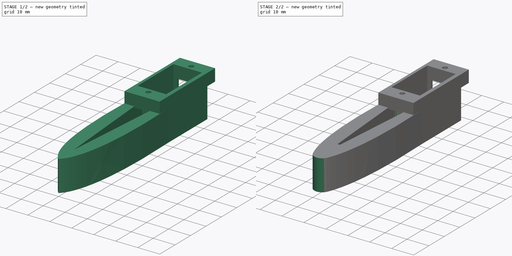
[diagram: build sequence overview — one tinted view per stage of 2, left to right]
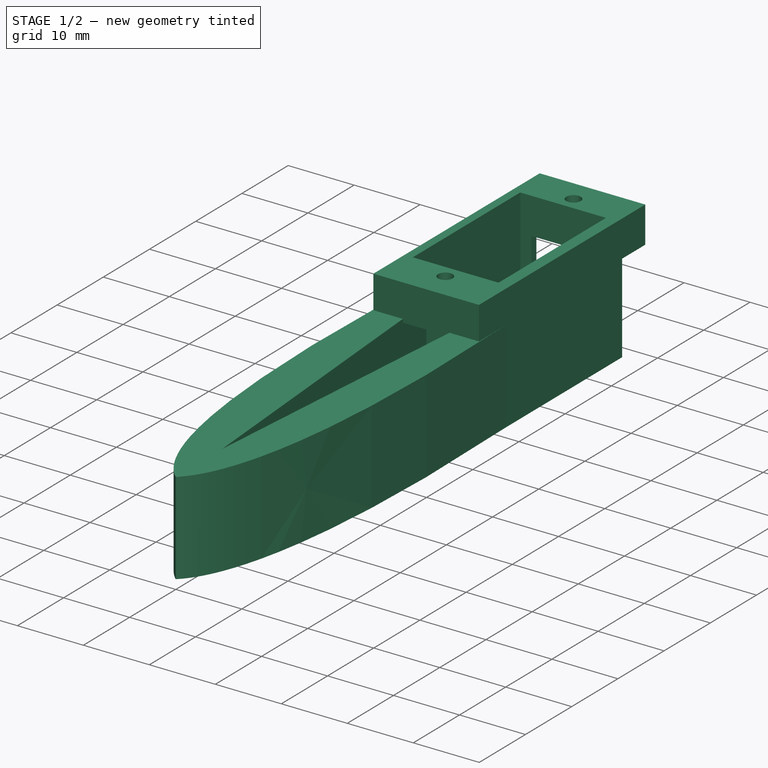
[diagram: stage 1 of 2 — iso view after this stage's code; geometry added in this stage tinted green]
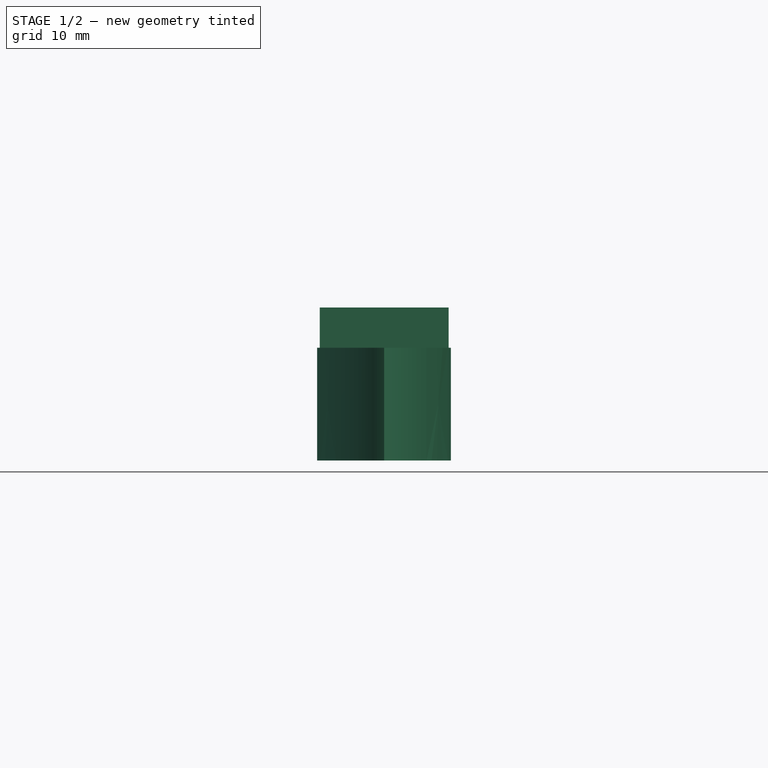
[diagram: stage 1 of 2 — front view after this stage's code; geometry added in this stage tinted green]
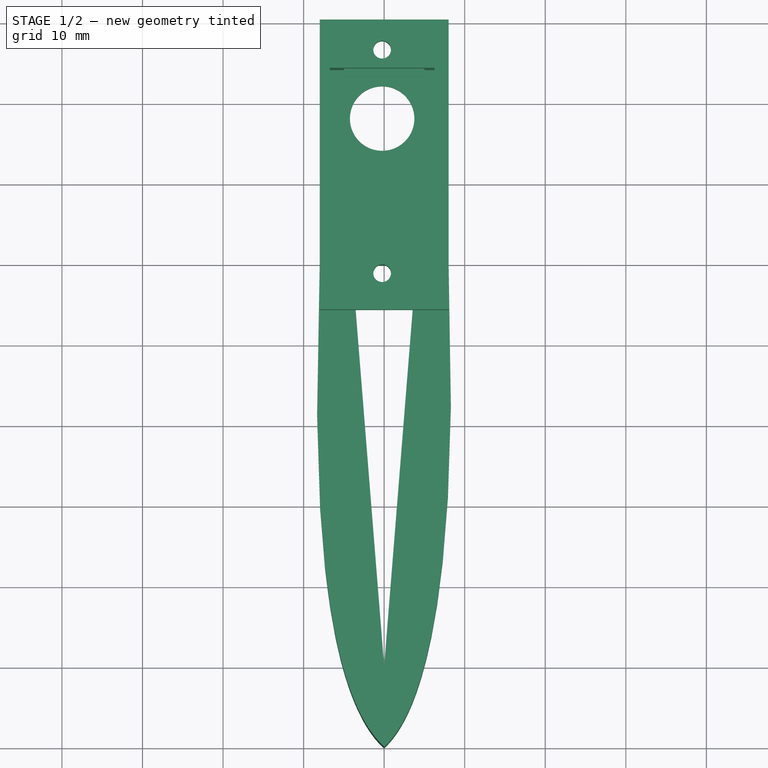
[diagram: stage 1 of 2 — top view after this stage's code; geometry added in this stage tinted green]
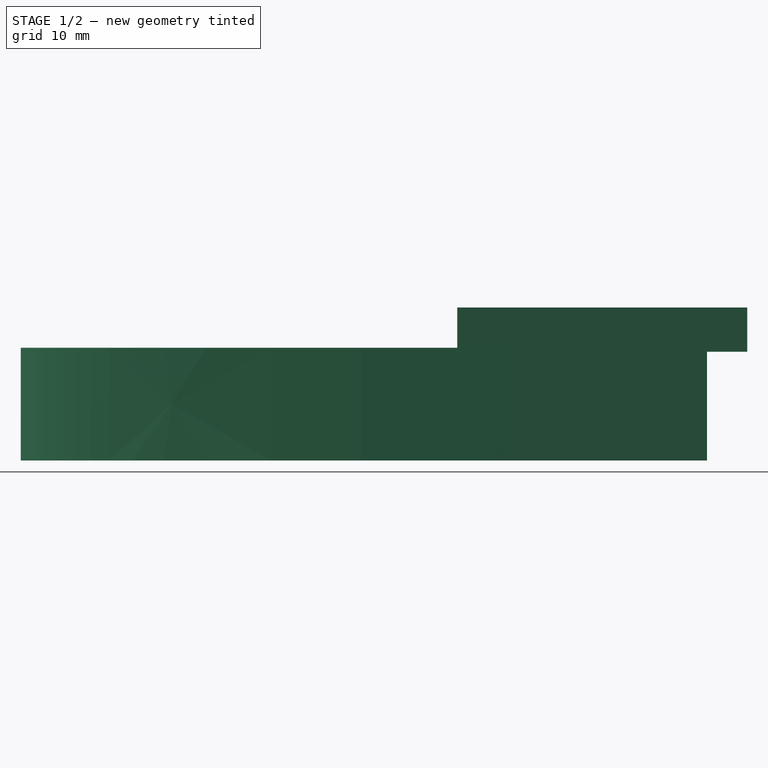
[diagram: stage 1 of 2 — right view after this stage's code; geometry added in this stage tinted green]
FCSTD DOCUMENT  (FreeCAD 0.18R4 (GitTag))
Label: pata 2
License: All rights reserved
LicenseURL: http://en.wikipedia.org/wiki/All_rights_reserved
objects: Sketcher::SketchObject×1, PartDesign::Pad×1, PartDesign::Body×1, Part::Feature×1, Part::MultiFuse×1, Part::Fillet×1
note: 7 computed .brp shape members not serialized (recipe doc carries the construction recipe); baked Part::Feature solids carry a one-line shape summary decoded from their .brp

FEATURE [Sketcher::SketchObject] Sketch
  MapMode = 5
  Support = -> [XY_Plane]
  sketch-geometry (16):
    g0: Circle [constr] CenterX=-8 CenterY=0 CenterZ=0 NormalX=0 NormalY=0 NormalZ=1 AngleXU=0 Radius=7
    g1: Circle [constr] CenterX=-10 CenterY=-51 CenterZ=0 NormalX=0 NormalY=0 NormalZ=1 AngleXU=0 Radius=7
    g2: Circle [constr] CenterX=0 CenterY=-60 CenterZ=0 NormalX=0 NormalY=0 NormalZ=1 AngleXU=0 Radius=7
    g3: BSplineCurve PolesCount=3 KnotsCount=2 Degree=2 IsPeriodic=0
    g4: GeomPoint [constr] X=-8 Y=0 Z=0
    g5: GeomPoint [constr] X=0 Y=-60 Z=0
    g6: Circle [constr] CenterX=8 CenterY=0 CenterZ=0 NormalX=0 NormalY=0 NormalZ=1 AngleXU=0 Radius=6
    g7: Circle [constr] CenterX=10 CenterY=-51 CenterZ=0 NormalX=0 NormalY=0 NormalZ=1 AngleXU=0 Radius=6
    g8: Circle [constr] CenterX=0 CenterY=-60 CenterZ=0 NormalX=0 NormalY=0 NormalZ=1 AngleXU=0 Radius=7
    g9: BSplineCurve PolesCount=3 KnotsCount=2 Degree=2 IsPeriodic=0
    g10: GeomPoint [constr] X=8 Y=0 Z=0
    g11: GeomPoint [constr] X=0 Y=-60 Z=0
    g12: LineSegment StartX=-8 StartY=0 StartZ=0 EndX=-4 EndY=0 EndZ=0
    g13: LineSegment StartX=-4 StartY=0 StartZ=0 EndX=0 EndY=-50 EndZ=0
    g14: LineSegment StartX=0 StartY=-50 StartZ=0 EndX=4 EndY=0 EndZ=0
    g15: LineSegment StartX=4 StartY=0 StartZ=0 EndX=8 EndY=0 EndZ=0
  constraints (36):
    c: Radius(g0) = 7
    c: Equal(g0,g1)
    c: Equal(g0,g2)
    c: InternalAlignment(g0,g3)
    c: InternalAlignment(g1,g3)
    c: InternalAlignment(g2,g3)
    c: InternalAlignment(g4,g3)
    c: InternalAlignment(g5,g3)
    c: Radius(g6) = 6
    c: Equal(g6,g7)
    c: InternalAlignment(g6,g9)
    c: InternalAlignment(g7,g9)
    c: InternalAlignment(g8,g9)
    c: InternalAlignment(g10,g9)
    c: InternalAlignment(g11,g9)
    c: DistanceX(g3,g9) = 16
    c: Symmetric(g3,g9,g-2)
    c: Coincident(g3,g9)
    c: PointOnObject(g3,g-2)
    c: DistanceY(g3,g9) = 60
    c: PointOnObject(g9,g-1)
    c: Coincident(g12,g13)
    c: Coincident(g13,g14)
    c: Coincident(g14,g15)
    c: Coincident(g3,g12)
    c: Coincident(g9,g15)
    c: Equal(g15,g12)
    c: Horizontal(g15)
    c: Horizontal(g12)
    c: PointOnObject(g13,g-2)
    c: DistanceY(g13,g14) = 50
    c: DistanceY(g3,g1) = 9
    c: Symmetric(g1,g7,g-2)
    c: DistanceX(g3,g7) = 10
    c: Equal(g2,g8)
    c: DistanceX(g3,g12) = 4
FEATURE [PartDesign::Pad] Pad
  Length = 14
  Length2 = 100
  Profile = -> Sketch
  Refine = true
  Type = 0
FEATURE [PartDesign::Body] Body
  Group = -> [Sketch,Pad]
  Origin = -> Origin
  Placement = pos=(0,0,-1) rot=(0,0,1;0rad)
  Tip = -> Pad
FEATURE [Part::Feature] Part__Feature  label="soporte_motor_con_hueco_tapon"
  Placement = pos=(8,29.7,1.5) rot=(0,0,1;3.14159rad)
  shape: bbox 16 x 36 x 19 mm, 25 faces (baked)
FEATURE [Part::MultiFuse] Fusion  label="pata sin redondear"
  Refine = true
  Shapes = -> [Body,Part__Feature]
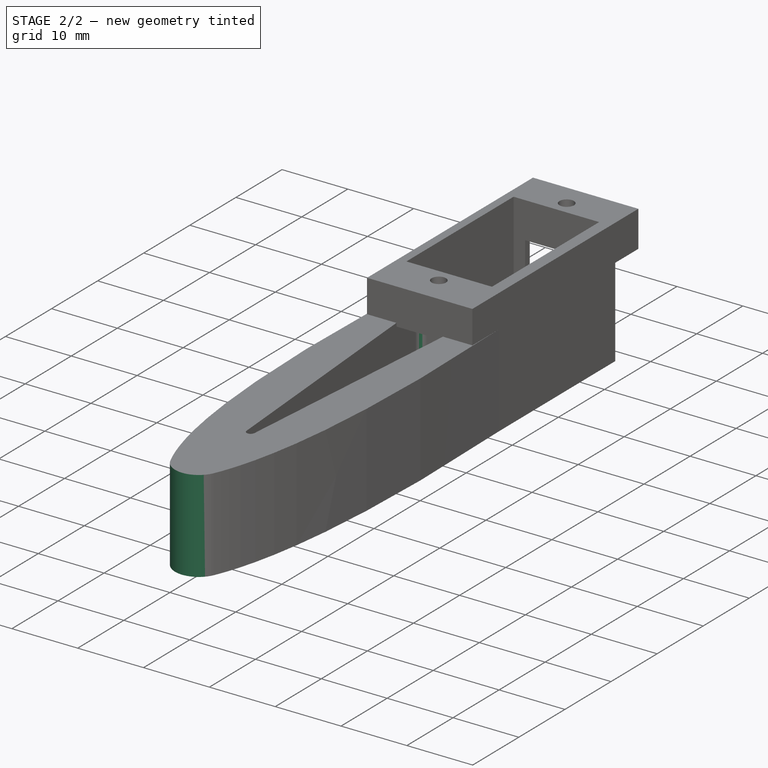
[diagram: stage 2 of 2 — iso view after this stage's code; geometry added in this stage tinted green]
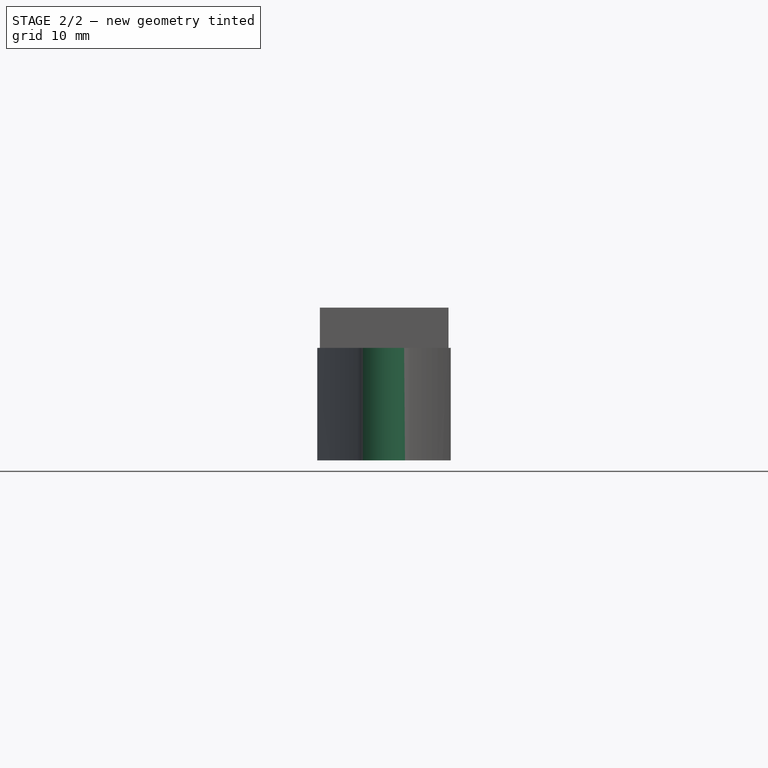
[diagram: stage 2 of 2 — front view after this stage's code; geometry added in this stage tinted green]
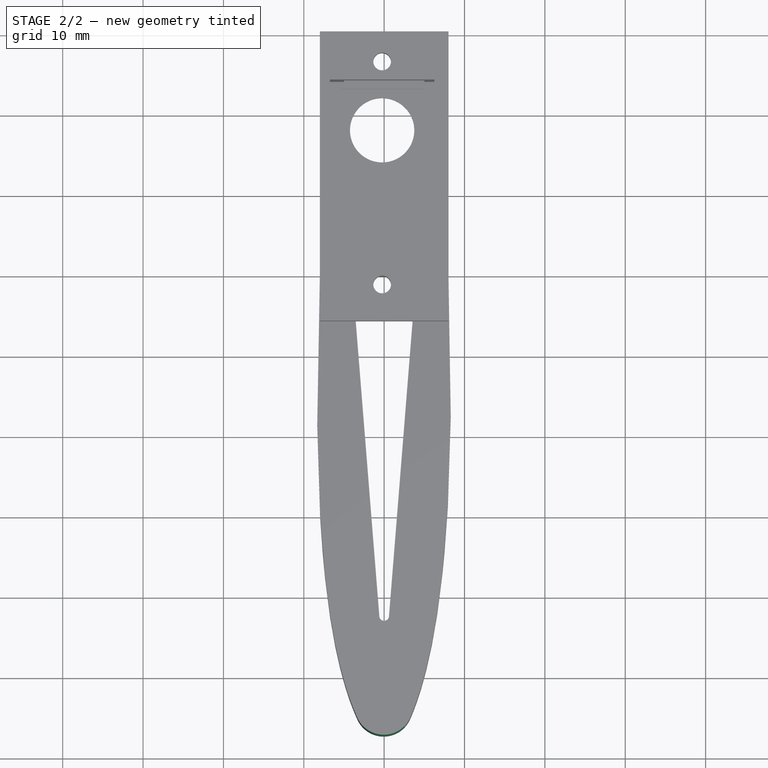
[diagram: stage 2 of 2 — top view after this stage's code; geometry added in this stage tinted green]
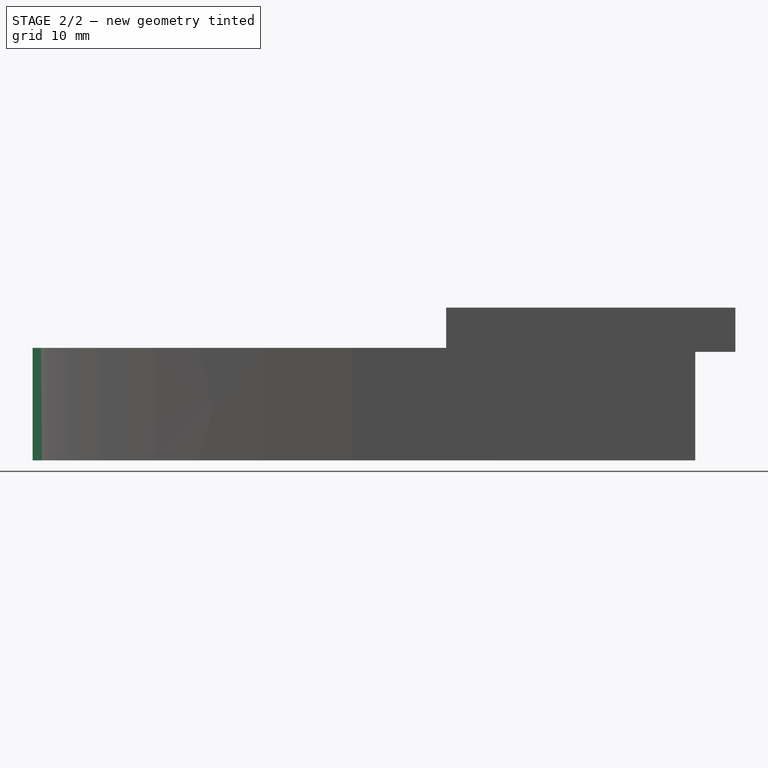
[diagram: stage 2 of 2 — right view after this stage's code; geometry added in this stage tinted green]
FEATURE [Part::Fillet] Fillet  label="pata 2"
  Base = -> Fusion
  Edges = 4 edges: [Edge12 r=3.6,Edge59 r=0.6,Edge61 r=1,Edge63 r=1]
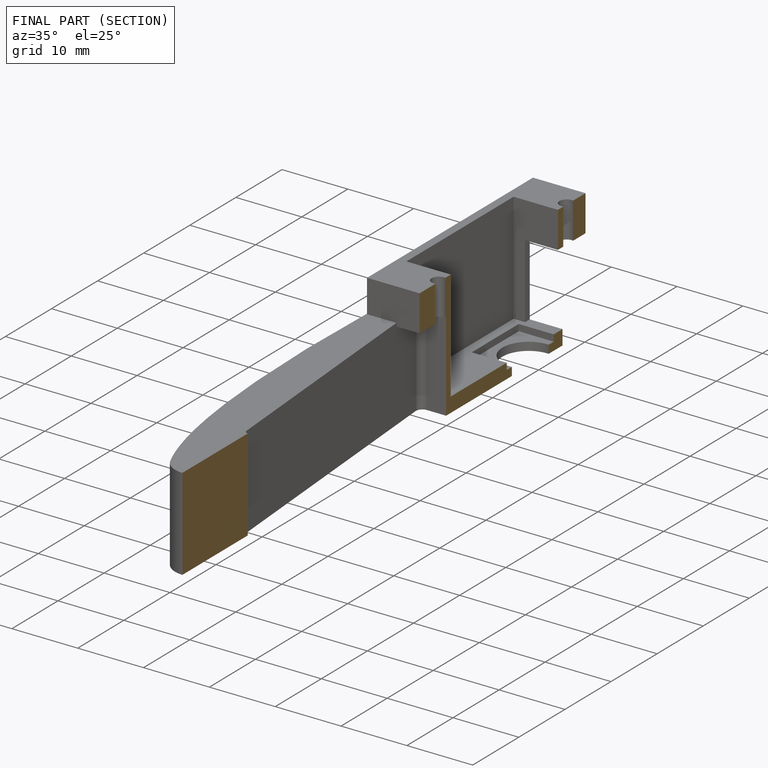
[diagram: finished part — half-section view (interior)]
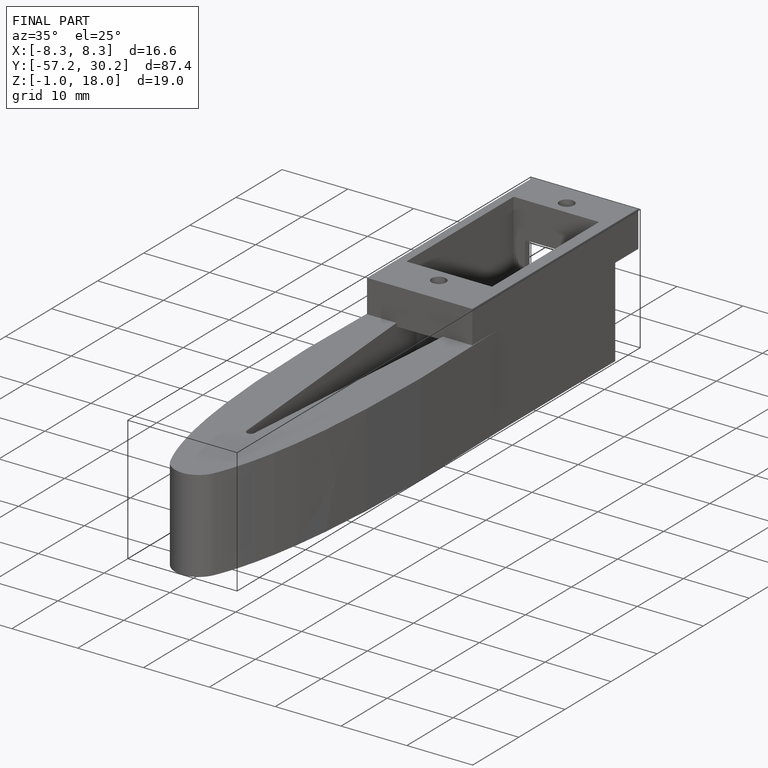
[diagram: finished part — iso view with bounding-box wireframe]
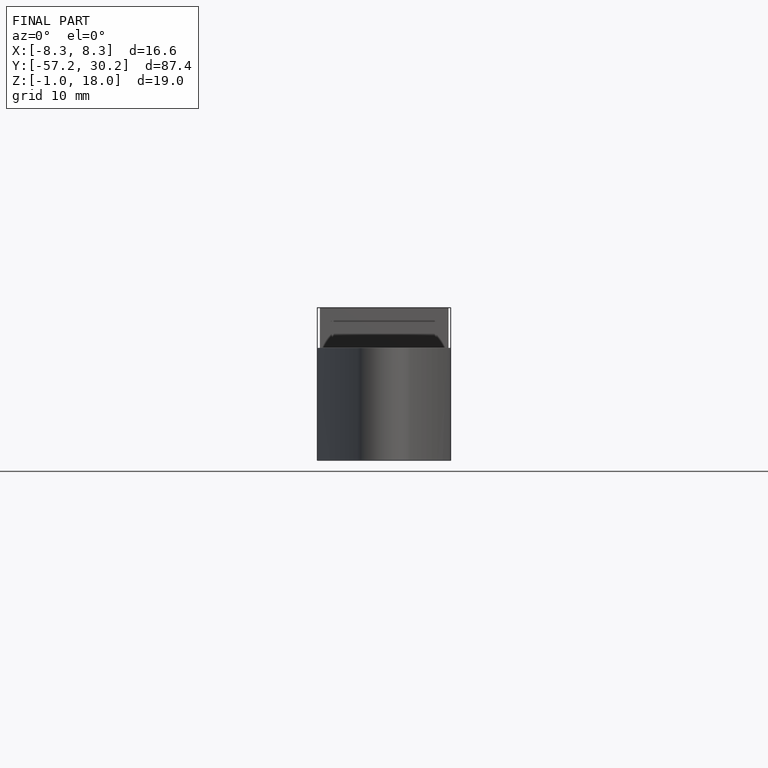
[diagram: finished part — front view with bounding-box wireframe]
